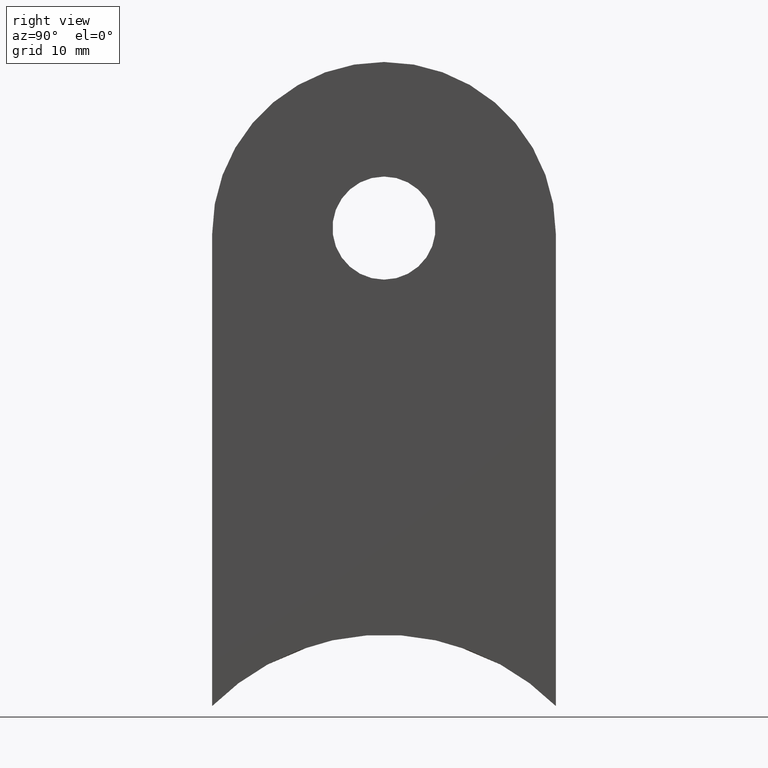
[diagram: clean part render]
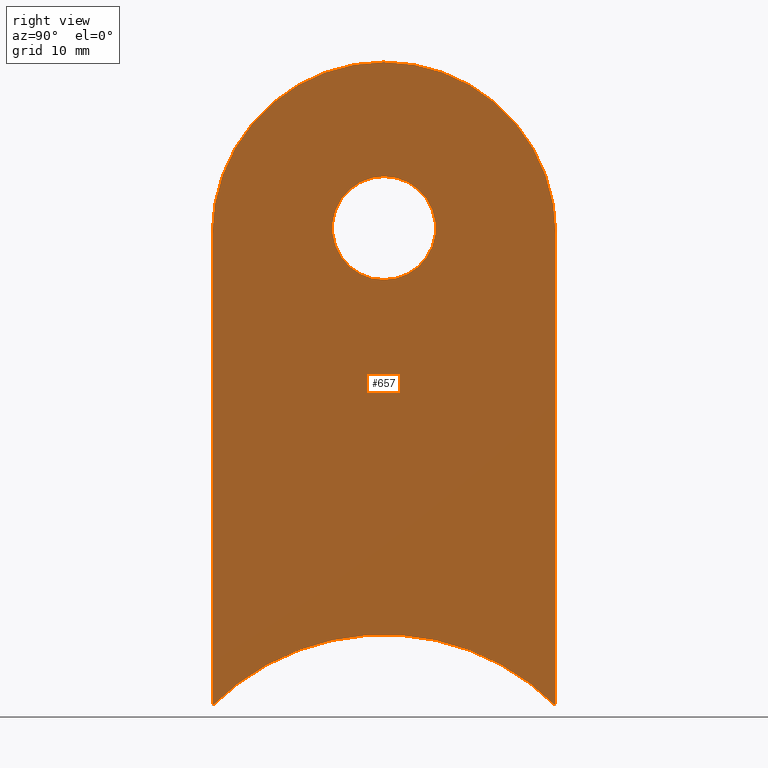
[diagram: same view with one face highlighted and labeled with its STEP entity id]
A machine part, right view. The second image highlights one B-rep face of the part: STEP entity #657.
In plain terms, the highlighted planar face has unit normal (-1, -0, 0).
Its self-contained STEP definition (entity closure, byte-faithful):
#469 = CARTESIAN_POINT ( 'NONE',  ( 2.000000000000000000, 0.0000000000000000000, 35.50000000000000000 ) ) ;
#657 = ADVANCED_FACE ( 'NONE', ( #1590, #2501 ), #3616, .F. ) ;
#803 = CIRCLE ( 'NONE', #6767, 4.500000000000000900 ) ;
#1046 = VERTEX_POINT ( 'NONE', #11990 ) ;
#1224 = VERTEX_POINT ( 'NONE', #11020 ) ;
#1326 = CIRCLE ( 'NONE', #2824, 15.00000000000000000 ) ;
#1571 = CARTESIAN_POINT ( 'NONE',  ( 2.000000000000000000, -15.00000000000000000, -6.218678295957995600 ) ) ;
#1590 = FACE_BOUND ( 'NONE', #4979, .T. ) ;
#1721 = DIRECTION ( 'NONE',  ( 0.0000000000000000000, 0.0000000000000000000, 1.000000000000000000 ) ) ;
#1733 = VERTEX_POINT ( 'NONE', #11996 ) ;
#1936 = DIRECTION ( 'NONE',  ( 0.0000000000000000000, 4.956352788505163400E-017, -1.000000000000000000 ) ) ;
#2071 = VERTEX_POINT ( 'NONE', #1571 ) ;
#2138 = CIRCLE ( 'NONE', #6307, 15.00000000000000000 ) ;
#2228 = EDGE_CURVE ( 'NONE', #1224, #1046, #1326, .T. ) ;
#2266 = CARTESIAN_POINT ( 'NONE',  ( 2.000000000000000000, 0.0000000000000000000, 34.99999999999999300 ) ) ;
#2345 = CARTESIAN_POINT ( 'NONE',  ( 2.000000000000000000, 0.0000000000000000000, 30.99999999999999600 ) ) ;
#2501 = FACE_OUTER_BOUND ( 'NONE', #4565, .T. ) ;
#2790 = CARTESIAN_POINT ( 'NONE',  ( 2.000000000000000000, 14.99999999999999800, 34.99999999999999300 ) ) ;
#2824 = AXIS2_PLACEMENT_3D ( 'NONE', #2963, #3845, #11316 ) ;
#2963 = CARTESIAN_POINT ( 'NONE',  ( 2.000000000000000000, 0.0000000000000000000, 34.99999999999999300 ) ) ;
#3404 = AXIS2_PLACEMENT_3D ( 'NONE', #10586, #6837, #8853 ) ;
#3616 = PLANE ( 'NONE',  #8940 ) ;
#3845 = DIRECTION ( 'NONE',  ( -1.000000000000000000, -0.0000000000000000000, 0.0000000000000000000 ) ) ;
#4272 = EDGE_CURVE ( 'NONE', #2071, #11790, #11428, .T. ) ;
#4565 = EDGE_LOOP ( 'NONE', ( #8536, #6899, #7093, #5982, #11889 ) ) ;
#4706 = EDGE_CURVE ( 'NONE', #5686, #1733, #8358, .T. ) ;
#4979 = EDGE_LOOP ( 'NONE', ( #5568, #5591 ) ) ;
#5001 = CARTESIAN_POINT ( 'NONE',  ( 2.000000000000000000, 0.0000000000000000000, 35.50000000000000000 ) ) ;
#5078 = DIRECTION ( 'NONE',  ( 1.000000000000000000, 0.0000000000000000000, 0.0000000000000000000 ) ) ;
#5521 = CARTESIAN_POINT ( 'NONE',  ( 2.000000000000000000, 0.0000000000000000000, 34.99999999999999300 ) ) ;
#5568 = ORIENTED_EDGE ( 'NONE', *, *, #4706, .F. ) ;
#5591 = ORIENTED_EDGE ( 'NONE', *, *, #10189, .F. ) ;
#5686 = VERTEX_POINT ( 'NONE', #2345 ) ;
#5982 = ORIENTED_EDGE ( 'NONE', *, *, #2228, .F. ) ;
#6035 = CIRCLE ( 'NONE', #3404, 21.19999999999999900 ) ;
#6094 = DIRECTION ( 'NONE',  ( -1.000000000000000000, -0.0000000000000000000, 0.0000000000000000000 ) ) ;
#6185 = EDGE_CURVE ( 'NONE', #9009, #2071, #6035, .T. ) ;
#6307 = AXIS2_PLACEMENT_3D ( 'NONE', #2266, #6094, #10718 ) ;
#6767 = AXIS2_PLACEMENT_3D ( 'NONE', #5001, #5078, #10601 ) ;
#6837 = DIRECTION ( 'NONE',  ( 1.000000000000000000, 0.0000000000000000000, 0.0000000000000000000 ) ) ;
#6899 = ORIENTED_EDGE ( 'NONE', *, *, #6185, .F. ) ;
#7033 = EDGE_CURVE ( 'NONE', #11790, #1224, #2138, .T. ) ;
#7093 = ORIENTED_EDGE ( 'NONE', *, *, #7497, .F. ) ;
#7202 = DIRECTION ( 'NONE',  ( 0.0000000000000000000, 0.0000000000000000000, -1.000000000000000000 ) ) ;
#7376 = DIRECTION ( 'NONE',  ( -1.000000000000000000, -0.0000000000000000000, 0.0000000000000000000 ) ) ;
#7497 = EDGE_CURVE ( 'NONE', #1046, #9009, #11284, .T. ) ;
#7623 = VECTOR ( 'NONE', #1936, 1000.000000000000000 ) ;
#8238 = CARTESIAN_POINT ( 'NONE',  ( 2.000000000000000000, -14.99999999999999800, 34.99999999999999300 ) ) ;
#8358 = CIRCLE ( 'NONE', #9197, 4.500000000000000900 ) ;
#8536 = ORIENTED_EDGE ( 'NONE', *, *, #4272, .F. ) ;
#8853 = DIRECTION ( 'NONE',  ( 0.0000000000000000000, 0.0000000000000000000, -1.000000000000000000 ) ) ;
#8940 = AXIS2_PLACEMENT_3D ( 'NONE', #5521, #7376, #1721 ) ;
#9009 = VERTEX_POINT ( 'NONE', #11596 ) ;
#9197 = AXIS2_PLACEMENT_3D ( 'NONE', #469, #11912, #7202 ) ;
#10189 = EDGE_CURVE ( 'NONE', #1733, #5686, #803, .T. ) ;
#10586 = CARTESIAN_POINT ( 'NONE',  ( 2.000000000000000000, 0.0000000000000000000, -21.19999999999999900 ) ) ;
#10601 = DIRECTION ( 'NONE',  ( 0.0000000000000000000, 0.0000000000000000000, -1.000000000000000000 ) ) ;
#10718 = DIRECTION ( 'NONE',  ( 0.0000000000000000000, 0.0000000000000000000, 1.000000000000000000 ) ) ;
#10765 = CARTESIAN_POINT ( 'NONE',  ( 2.000000000000000000, -15.00000000000000000, -3.061616997868383000E-015 ) ) ;
#11020 = CARTESIAN_POINT ( 'NONE',  ( 2.000000000000000000, 0.0000000000000000000, 49.99999999999999300 ) ) ;
#11284 = LINE ( 'NONE', #2790, #7623 ) ;
#11286 = VECTOR ( 'NONE', #11776, 1000.000000000000000 ) ;
#11316 = DIRECTION ( 'NONE',  ( 0.0000000000000000000, 0.0000000000000000000, 1.000000000000000000 ) ) ;
#11428 = LINE ( 'NONE', #10765, #11286 ) ;
#11596 = CARTESIAN_POINT ( 'NONE',  ( 2.000000000000000000, 15.00000000000000000, -6.218678295957995600 ) ) ;
#11776 = DIRECTION ( 'NONE',  ( 0.0000000000000000000, 4.956352788505163400E-017, 1.000000000000000000 ) ) ;
#11790 = VERTEX_POINT ( 'NONE', #8238 ) ;
#11889 = ORIENTED_EDGE ( 'NONE', *, *, #7033, .F. ) ;
#11912 = DIRECTION ( 'NONE',  ( 1.000000000000000000, 0.0000000000000000000, 0.0000000000000000000 ) ) ;
#11990 = CARTESIAN_POINT ( 'NONE',  ( 2.000000000000000000, 14.99999999999999800, 34.99999999999999300 ) ) ;
#11996 = CARTESIAN_POINT ( 'NONE',  ( 2.000000000000000000, 5.510910596163087600E-016, 40.00000000000000000 ) ) ;